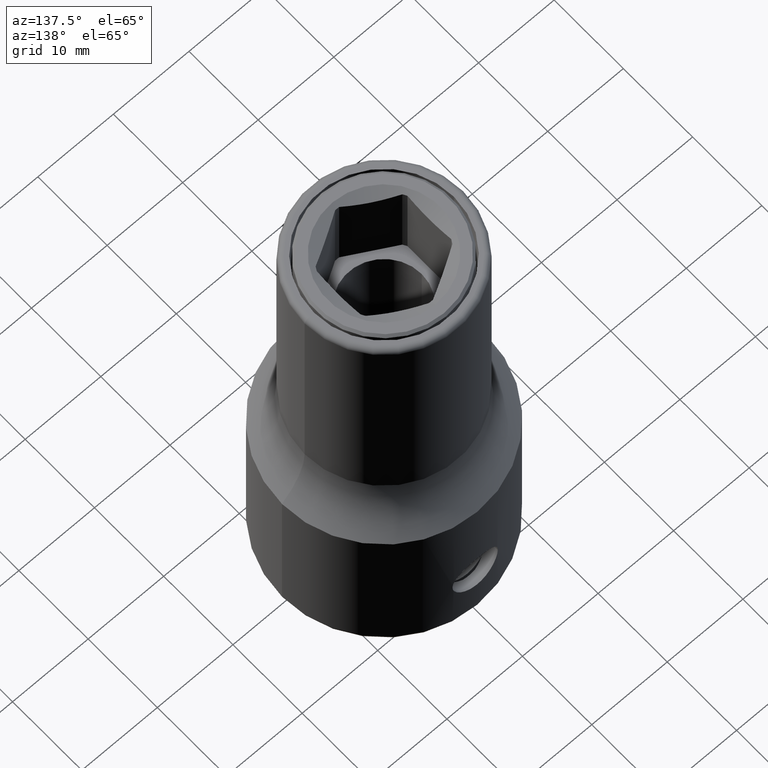
[diagram: clean part render]
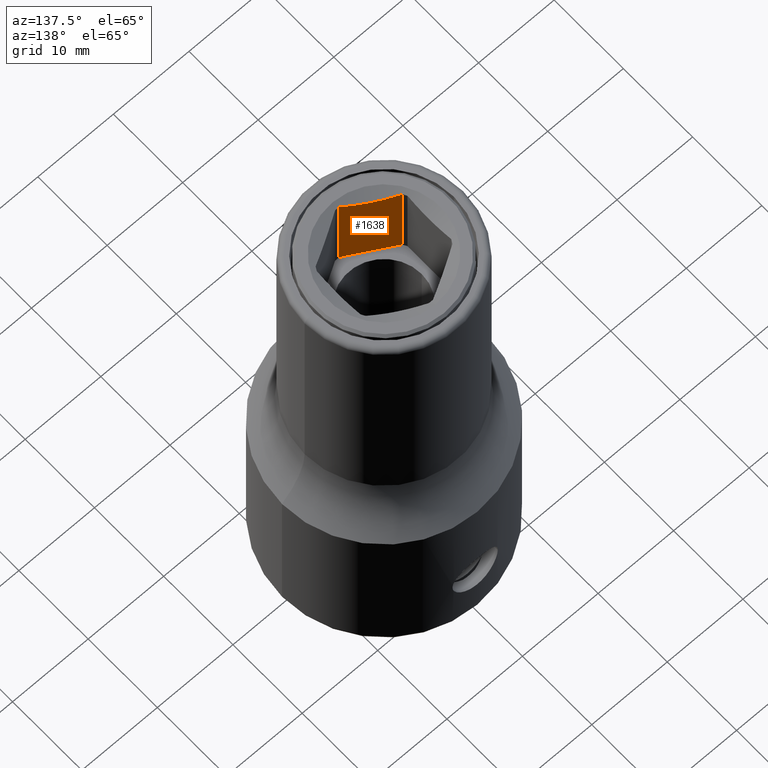
[diagram: same view with one face highlighted and labeled with its STEP entity id]
A machine part, auxiliary view. The second image highlights one B-rep face of the part: STEP entity #1638.
In plain terms, the highlighted planar face has unit normal (-0.5, -0.866, 0).
Its self-contained STEP definition (entity closure, byte-faithful):
#467=DIRECTION('',(0.E0,0.E0,-1.E0));
#468=VECTOR('',#467,1.161317531964E1);
#469=CARTESIAN_POINT('',(-2.657176444266E-1,-6.774791076737E0,
5.961317531964E1));
#470=LINE('',#469,#468);
#635=DIRECTION('',(8.660254037844E-1,-5.E-1,0.E0));
#636=VECTOR('',#635,6.314554616123E0);
#637=CARTESIAN_POINT('',(-5.734282355573E0,-3.617513768676E0,4.8E1));
#638=LINE('',#637,#636);
#654=CARTESIAN_POINT('',(-2.657176444266E-1,-6.774791076737E0,
5.961317531964E1));
#655=CARTESIAN_POINT('',(-5.813258981530E-1,-6.592574566490E0,
5.951519471220E1));
#656=CARTESIAN_POINT('',(-1.203859326177E0,-6.233154724241E0,5.934887974145E1));
#657=CARTESIAN_POINT('',(-2.101357194290E0,-5.714984088488E0,5.919780545988E1));
#658=CARTESIAN_POINT('',(-3.000002182246E0,-5.196151162787E0,5.914536025479E1));
#659=CARTESIAN_POINT('',(-3.898651180335E0,-4.677315921833E0,5.919780617903E1));
#660=CARTESIAN_POINT('',(-4.796153178041E0,-4.159142901859E0,5.934888258591E1));
#661=CARTESIAN_POINT('',(-5.418679286317E0,-3.799727285668E0,5.951519632172E1));
#662=CARTESIAN_POINT('',(-5.734282355573E0,-3.617513768676E0,5.961317531964E1));
#664=DIRECTION('',(0.E0,0.E0,-1.E0));
#665=VECTOR('',#664,1.161317531964E1);
#666=CARTESIAN_POINT('',(-5.734282355573E0,-3.617513768676E0,5.961317531964E1));
#667=LINE('',#666,#665);
#1000=CARTESIAN_POINT('',(-5.734282355573E0,-3.617513768676E0,4.8E1));
#1001=VERTEX_POINT('',#1000);
#1002=CARTESIAN_POINT('',(-2.657176444266E-1,-6.774791076737E0,4.8E1));
#1003=VERTEX_POINT('',#1002);
#1034=CARTESIAN_POINT('',(-5.734282355573E0,-3.617513768676E0,
5.961317531964E1));
#1035=VERTEX_POINT('',#1034);
#1036=VERTEX_POINT('',#654);
#1626=CARTESIAN_POINT('',(-5.734282355573E0,-3.617513768676E0,6.E1));
#1627=DIRECTION('',(-5.E-1,-8.660254037844E-1,0.E0));
#1628=DIRECTION('',(8.660254037844E-1,-5.E-1,0.E0));
#1629=AXIS2_PLACEMENT_3D('',#1626,#1627,#1628);
#1630=PLANE('',#1629);
#1631=ORIENTED_EDGE('',*,*,#1456,.T.);
#1633=ORIENTED_EDGE('',*,*,#1632,.T.);
#1634=ORIENTED_EDGE('',*,*,#1613,.T.);
#1635=ORIENTED_EDGE('',*,*,#1438,.F.);
#1636=EDGE_LOOP('',(#1631,#1633,#1634,#1635));
#1637=FACE_OUTER_BOUND('',#1636,.F.);
#1638=ADVANCED_FACE('',(#1637),#1630,.F.);
#663=B_SPLINE_CURVE_WITH_KNOTS('',3,(#654,#655,#656,#657,#658,#659,#660,#661,
#662),.UNSPECIFIED.,.F.,.F.,(4,1,1,1,1,1,4),(0.E0,1.666666666667E-1,
3.333333333333E-1,5.E-1,6.666666666667E-1,8.333333333333E-1,1.E0),
.UNSPECIFIED.);
#1438=EDGE_CURVE('',#1036,#1003,#470,.T.);
#1456=EDGE_CURVE('',#1036,#1035,#663,.T.);
#1613=EDGE_CURVE('',#1001,#1003,#638,.T.);
#1632=EDGE_CURVE('',#1035,#1001,#667,.T.);